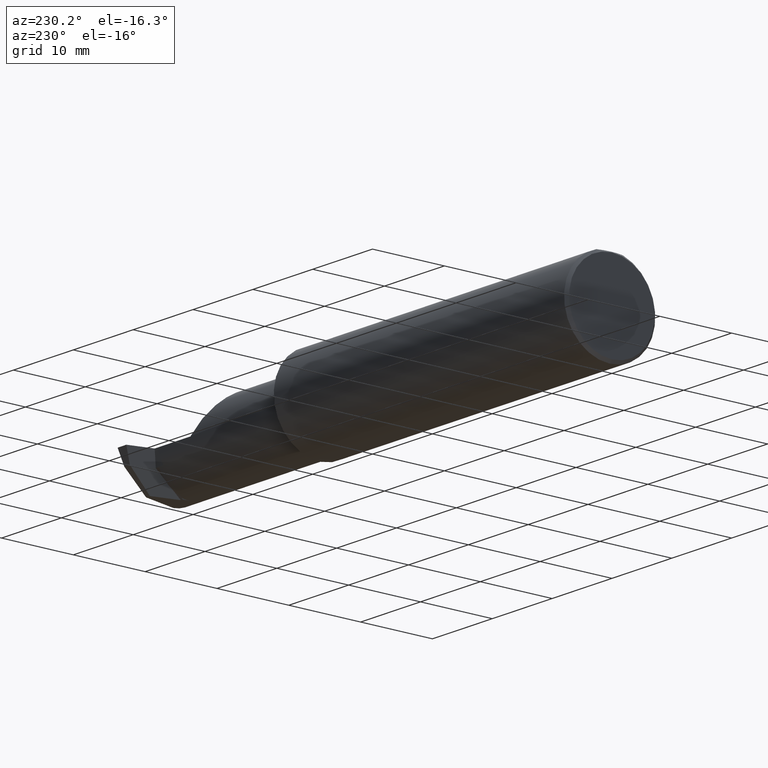
[diagram: clean part render]
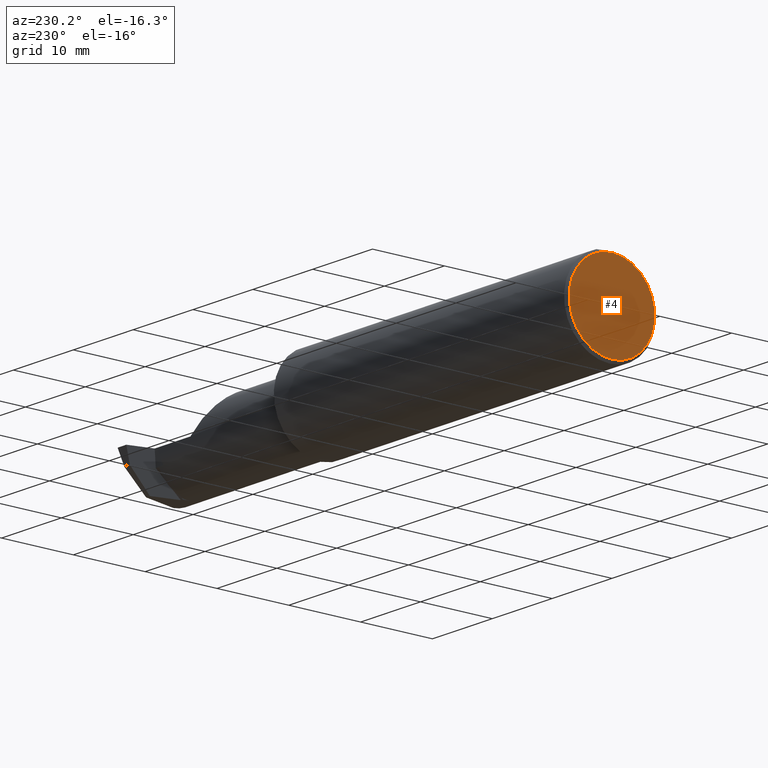
[diagram: same view with one face highlighted and labeled with its STEP entity id]
A machine part, auxiliary view. The second image highlights one B-rep face of the part: STEP entity #4.
In plain terms, the highlighted planar face has unit normal (1, 0, 0).
Its self-contained STEP definition (entity closure, byte-faithful):
#4 = ADVANCED_FACE ( 'NONE', ( #602 ), #904, .F. ) ;
#162 = CARTESIAN_POINT ( 'NONE',  ( 0.000000000000000000, 0.000000000000000000, -0.2348499999999984211 ) ) ;
#172 = CIRCLE ( 'NONE', #228, 0.2348499999999984211 ) ;
#188 = VERTEX_POINT ( 'NONE', #162 ) ;
#228 = AXIS2_PLACEMENT_3D ( 'NONE', #866, #948, #505 ) ;
#259 = ORIENTED_EDGE ( 'NONE', *, *, #587, .T. ) ;
#306 = CIRCLE ( 'NONE', #466, 0.2348499999999984211 ) ;
#340 = DIRECTION ( 'NONE',  ( -1.000000000000000000, -0.000000000000000000, -0.000000000000000000 ) ) ;
#375 = AXIS2_PLACEMENT_3D ( 'NONE', #677, #590, #835 ) ;
#423 = CARTESIAN_POINT ( 'NONE',  ( 0.000000000000000000, 0.000000000000000000, 0.000000000000000000 ) ) ;
#466 = AXIS2_PLACEMENT_3D ( 'NONE', #423, #340, #707 ) ;
#505 = DIRECTION ( 'NONE',  ( 0.000000000000000000, 0.000000000000000000, -1.000000000000000000 ) ) ;
#550 = EDGE_LOOP ( 'NONE', ( #582, #259 ) ) ;
#582 = ORIENTED_EDGE ( 'NONE', *, *, #796, .T. ) ;
#587 = EDGE_CURVE ( 'NONE', #765, #188, #172, .T. ) ;
#590 = DIRECTION ( 'NONE',  ( 1.000000000000000000, 0.000000000000000000, 0.000000000000000000 ) ) ;
#602 = FACE_OUTER_BOUND ( 'NONE', #550, .T. ) ;
#633 = CARTESIAN_POINT ( 'NONE',  ( 0.000000000000000000, 2.967931517733600783E-17, 0.2348499999999984211 ) ) ;
#677 = CARTESIAN_POINT ( 'NONE',  ( 0.000000000000000000, 0.000000000000000000, 0.000000000000000000 ) ) ;
#707 = DIRECTION ( 'NONE',  ( 0.000000000000000000, 0.000000000000000000, -1.000000000000000000 ) ) ;
#765 = VERTEX_POINT ( 'NONE', #633 ) ;
#796 = EDGE_CURVE ( 'NONE', #188, #765, #306, .T. ) ;
#835 = DIRECTION ( 'NONE',  ( 0.000000000000000000, 0.000000000000000000, -1.000000000000000000 ) ) ;
#866 = CARTESIAN_POINT ( 'NONE',  ( 0.000000000000000000, 0.000000000000000000, 0.000000000000000000 ) ) ;
#904 = PLANE ( 'NONE',  #375 ) ;
#948 = DIRECTION ( 'NONE',  ( -1.000000000000000000, -0.000000000000000000, -0.000000000000000000 ) ) ;